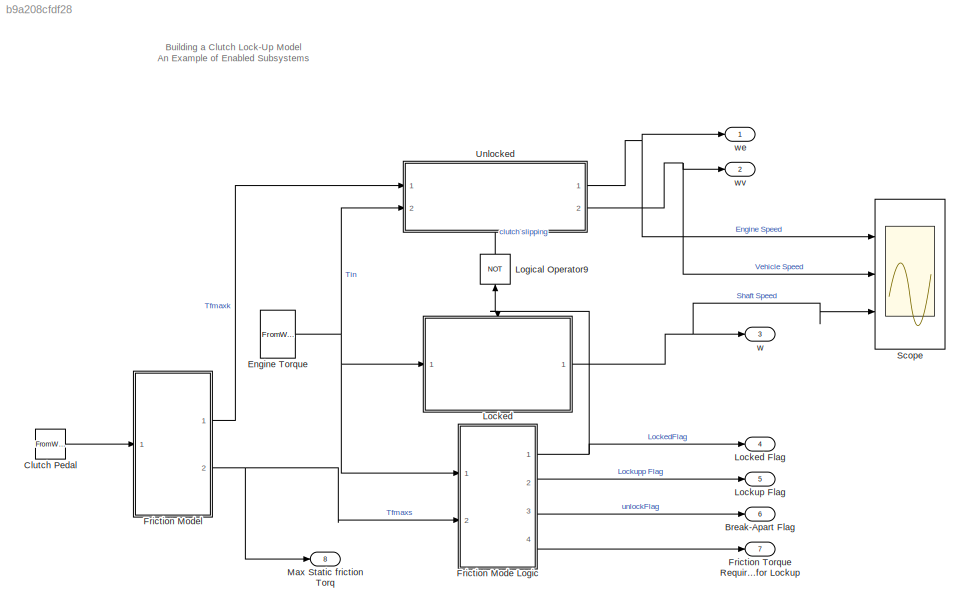
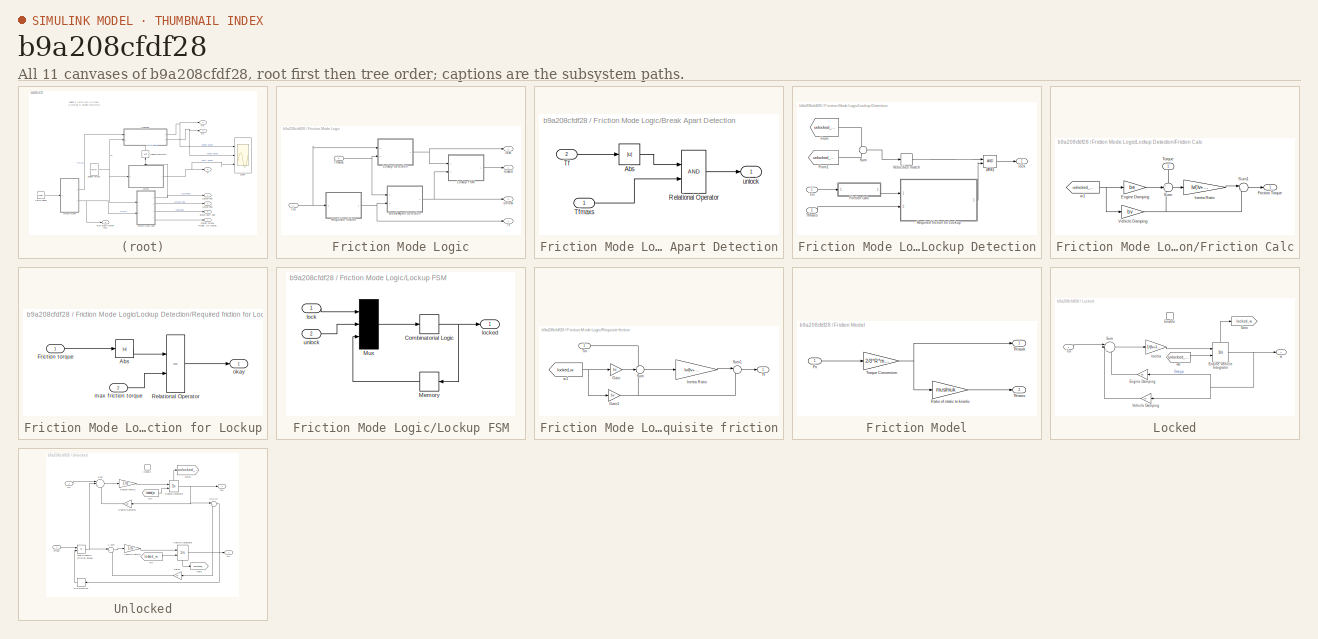
[diagram: thumbnail index - all 11 canvases of the model, root first then tree order]
MODEL slx_b9a208cfdf28
KIND model
CONFIG AbsTol = auto
CONFIG EnableMultiTasking = off
CONFIG FixedStep = auto
CONFIG MaxStep = auto
CONFIG MinStep = auto
CONFIG RelTol = 1e-3
CONFIG SampleTimeConstraint = Unconstrained
CONFIG Solver = VariableStepAuto
CONFIG SolverName = VariableStepAuto
CONFIG StartTime = 0.0
CONFIG StopTime = 10.0
WORKSPACE source: mxarray member
WORKSPACE Fn = [0 1 2 3 4 5 6 7 8 9 10 0 ... (22 elements, 11x2)]
WORKSPACE Ie = 1
WORKSPACE Iv = 1
WORKSPACE R = 1
WORKSPACE Tin = [1 2 3 4 5 6 7 8 9 10 2 2 ... (20 elements, 10x2)]
WORKSPACE f1 = [1 6 11 16 21 26 31 36 41 46 51]
WORKSPACE muk = 1
WORKSPACE mus = 1.5
BLOCK [Outport] Break-Apart Flag
  Port = 6
BLOCK [FromWorkspace] Clutch Pedal
  VariableName = Fn
  ZeroCross = off
BLOCK [FromWorkspace] Engine Torque
  VariableName = Tin
  ZeroCross = off
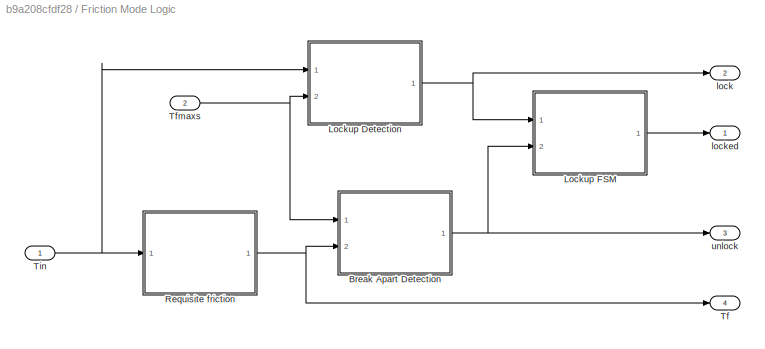
BLOCK [SubSystem] Friction Mode Logic
  Ports = [2, 4]
  RequestExecContextInheritance = off
BLOCK [SubSystem] Friction Mode Logic/Break Apart Detection
  Ports = [2, 1]
  RequestExecContextInheritance = off
BLOCK [Abs] Friction Mode Logic/Break Apart Detection/Abs
  SaturateOnIntegerOverflow = off
BLOCK [RelationalOperator] Friction Mode Logic/Break Apart Detection/Relational Operator
  InputSameDT = off
  OutDataTypeStr = boolean
  Ports = [2, 1]
  RndMeth = Simplest
BLOCK [Inport] Friction Mode Logic/Break Apart Detection/Tf
  Port = 2
BLOCK [Inport] Friction Mode Logic/Break Apart Detection/Tfmaxs
BLOCK [Outport] Friction Mode Logic/Break Apart Detection/unlock
BLOCK [SubSystem] Friction Mode Logic/Lockup Detection
  Ports = [2, 1]
  RequestExecContextInheritance = off
BLOCK [Logic] Friction Mode Logic/Lockup Detection/(AND)
  AllPortsSameDT = off
  IconShape = distinctive
  OutDataTypeStr = boolean
  Ports = [2, 1]
BLOCK [SubSystem] Friction Mode Logic/Lockup Detection/Friction Calc
  Ports = [1, 1]
  RequestExecContextInheritance = off
BLOCK [Gain] Friction Mode Logic/Lockup Detection/Friction Calc/Engine Damping
  Gain = be
  NameLocation = top
  OutDataTypeStr = Inherit: Same as input
  ParamDataTypeStr = Inherit: Same as input
  SaturateOnIntegerOverflow = on
BLOCK [Outport] Friction Mode Logic/Lockup Detection/Friction Calc/Friction Torque
  InitialOutput = 0
  VectorParamsAs1DForOutWhenUnconnected = off
BLOCK [Gain] Friction Mode Logic/Lockup Detection/Friction Calc/Inertia Ratio
  Gain = Iv/(Iv+Ie)
  OutDataTypeStr = Inherit: Same as input
  ParamDataTypeStr = Inherit: Same as input
  SaturateOnIntegerOverflow = on
BLOCK [Sum] Friction Mode Logic/Lockup Detection/Friction Calc/Sum
  InputSameDT = on
  Inputs = +--
  OutDataTypeStr = Inherit: Same as first input
  Ports = [3, 1]
  SaturateOnIntegerOverflow = on
BLOCK [Sum] Friction Mode Logic/Lockup Detection/Friction Calc/Sum1
  InputSameDT = on
  Inputs = |++
  OutDataTypeStr = Inherit: Same as first input
  Ports = [2, 1]
  SaturateOnIntegerOverflow = on
BLOCK [Inport] Friction Mode Logic/Lockup Detection/Friction Calc/Torque
  NameLocation = left
BLOCK [Gain] Friction Mode Logic/Lockup Detection/Friction Calc/Vehicle Damping
  Gain = bv
  OutDataTypeStr = Inherit: Same as input
  ParamDataTypeStr = Inherit: Same as input
  SaturateOnIntegerOverflow = on
BLOCK [From] Friction Mode Logic/Lockup Detection/Friction Calc/w1
  GotoTag = unlocked_we
  TagVisibility = global
BLOCK [From] Friction Mode Logic/Lockup Detection/From
  GotoTag = unlocked_we
  TagVisibility = global
BLOCK [From] Friction Mode Logic/Lockup Detection/From1
  GotoTag = unlocked_wv
  TagVisibility = global
BLOCK [SubSystem] Friction Mode Logic/Lockup Detection/Required friction for Lockup
  Ports = [2, 1]
  RequestExecContextInheritance = off
BLOCK [Abs] Friction Mode Logic/Lockup Detection/Required friction for Lockup/Abs
  SaturateOnIntegerOverflow = off
BLOCK [Inport] Friction Mode Logic/Lockup Detection/Required friction for Lockup/Friction torque
BLOCK [RelationalOperator] Friction Mode Logic/Lockup Detection/Required friction for Lockup/Relational Operator
  InputSameDT = off
  Operator = <=
  OutDataTypeStr = boolean
  Ports = [2, 1]
  RndMeth = Simplest
BLOCK [Inport] Friction Mode Logic/Lockup Detection/Required friction for Lockup/max friction torque
  Port = 2
BLOCK [Outport] Friction Mode Logic/Lockup Detection/Required friction for Lockup/okay
BLOCK [Sum] Friction Mode Logic/Lockup Detection/Sum
  Inputs = +-
  Ports = [2, 1]
BLOCK [Inport] Friction Mode Logic/Lockup Detection/Tfmaxs
  Port = 2
BLOCK [Inport] Friction Mode Logic/Lockup Detection/Tin
BLOCK [HitCross] Friction Mode Logic/Lockup Detection/Velocities match
  Ports = [1, 1]
BLOCK [Outport] Friction Mode Logic/Lockup Detection/lock
BLOCK [SubSystem] Friction Mode Logic/Lockup FSM
  Ports = [2, 1]
  RequestExecContextInheritance = off
BLOCK [CombinatorialLogic] Friction Mode Logic/Lockup FSM/Combinatorial Logic
  TruthTable = [0;1;0;0;1;1;1;0]
BLOCK [Memory] Friction Mode Logic/Lockup FSM/Memory
BLOCK [Mux] Friction Mode Logic/Lockup FSM/Mux
  Inputs = 3
  Ports = [3, 1]
BLOCK [Inport] Friction Mode Logic/Lockup FSM/lock
BLOCK [Outport] Friction Mode Logic/Lockup FSM/locked
BLOCK [Inport] Friction Mode Logic/Lockup FSM/unlock
  Port = 2
BLOCK [SubSystem] Friction Mode Logic/Requisite friction
  Ports = [1, 1]
  RequestExecContextInheritance = off
BLOCK [Gain] Friction Mode Logic/Requisite friction/Gain
  Gain = be
BLOCK [Gain] Friction Mode Logic/Requisite friction/Gain1
  Gain = bv
BLOCK [Gain] Friction Mode Logic/Requisite friction/Inertia Ratio
  Gain = Iv/(Iv+Ie)
BLOCK [Sum] Friction Mode Logic/Requisite friction/Sum
  Inputs = +--
  Ports = [3, 1]
BLOCK [Sum] Friction Mode Logic/Requisite friction/Sum1
  Inputs = |++
  Ports = [2, 1]
BLOCK [Outport] Friction Mode Logic/Requisite friction/Tf
BLOCK [Inport] Friction Mode Logic/Requisite friction/Tin
BLOCK [From] Friction Mode Logic/Requisite friction/w1
  GotoTag = locked_w
  TagVisibility = global
BLOCK [Outport] Friction Mode Logic/Tf
  Port = 4
BLOCK [Inport] Friction Mode Logic/Tfmaxs
  Port = 2
BLOCK [Inport] Friction Mode Logic/Tin
BLOCK [Outport] Friction Mode Logic/lock
  Port = 2
BLOCK [Outport] Friction Mode Logic/locked
BLOCK [Outport] Friction Mode Logic/unlock
  Port = 3
BLOCK [SubSystem] Friction Model
  Ports = [1, 2]
  RequestExecContextInheritance = off
BLOCK [Inport] Friction Model/Fn
BLOCK [Gain] Friction Model/Ratio of static to kinetic
  Gain = mus/muk
  OutDataTypeStr = Inherit: Same as input
  ParamDataTypeStr = Inherit: Same as input
  SaturateOnIntegerOverflow = on
BLOCK [Outport] Friction Model/Tfmaxk
BLOCK [Outport] Friction Model/Tfmaxs
  Port = 2
BLOCK [Gain] Friction Model/Torque Conversion
  Gain = 2/3*R*muk
  OutDataTypeStr = Inherit: Same as input
  ParamDataTypeStr = Inherit: Same as input
  SaturateOnIntegerOverflow = on
BLOCK [Outport] Friction Torque Required for Lockup
  Port = 7
BLOCK [SubSystem] Locked
  Ports = [1, 1, 1]
  RequestExecContextInheritance = off
BLOCK [Outport] Locked Flag
  Port = 4
BLOCK [EnablePort] Locked/Enable
  Ports = []
BLOCK [Gain] Locked/Engine Damping
  Gain = be
BLOCK [Integrator] Locked/Engine Vehicle Integrator
  InitialConditionSource = external
  Ports = [2, 1, 0, 0, 1]
  ShowStatePort = on
BLOCK [Goto] Locked/Goto
  GotoTag = locked_w
  TagVisibility = global
BLOCK [Gain] Locked/Inertia
  Gain = 1/(Iv+Ie)
  NameLocation = top
BLOCK [Sum] Locked/Sum
  Inputs = ||+--
  Ports = [3, 1]
BLOCK [Inport] Locked/Tin
BLOCK [Gain] Locked/Vehicle Damping
  Gain = bv
BLOCK [Outport] Locked/w
BLOCK [From] Locked/w0
  GotoTag = unlocked_we
  TagVisibility = global
BLOCK [Outport] Lockup Flag
  Port = 5
BLOCK [Logic] Logical Operator9
  IconShape = distinctive
  Inputs = 1
  NameLocation = left
  Operator = NOT
  OutDataTypeStr = boolean
  Ports = [1, 1]
BLOCK [Outport] Max Static friction Torq
  Port = 8
BLOCK [Scope] Scope
  Floating = off
  NumInputPorts = 3
  Ports = [3]
  ScopeSpecificationString = Simulink.scopes.TimeScopeBlockCfg('CurrentConfiguration', extmgr.ConfigurationSet(extmgr.Configuration('Core','General UI',true),extmgr.Configuration('Core','Source UI',true),extmgr.Configuration('Sources','WiredSimulink',true),extmgr.Configuration('Visuals','Time Domain',true,'SerializedDisplays',{struct('MinYLimReal','-0.14585','MaxYLimReal','1.31266','YLabelReal','','MinYLimMag','0.00000','MaxY...<+1391ch>
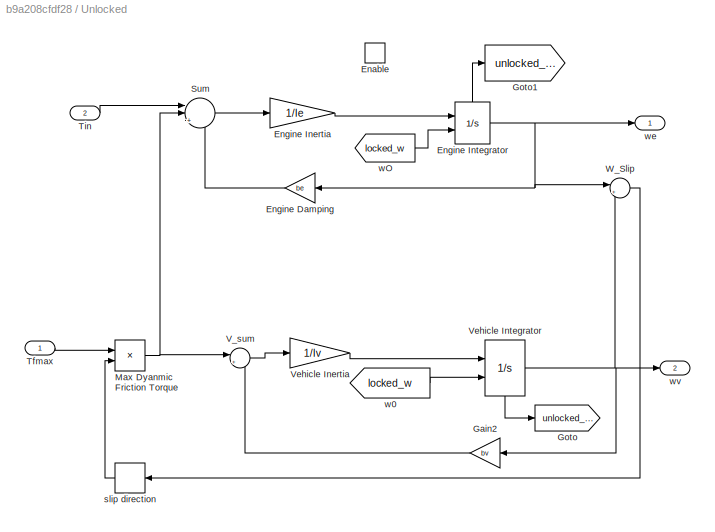
BLOCK [SubSystem] Unlocked
  InitFcn = be = 1;\nbv = 1;
  NameLocation = top
  Ports = [2, 2, 1]
  RequestExecContextInheritance = off
BLOCK [EnablePort] Unlocked/Enable
  Ports = []
BLOCK [Gain] Unlocked/Engine Damping
  Gain = be
BLOCK [Gain] Unlocked/Engine Inertia
  Gain = 1/Ie
BLOCK [Integrator] Unlocked/Engine Integrator
  InitialConditionSource = external
  Ports = [2, 1, 0, 0, 1]
  ShowStatePort = on
BLOCK [Gain] Unlocked/Gain2
  Gain = bv
BLOCK [Goto] Unlocked/Goto
  GotoTag = unlocked_wv
  TagVisibility = global
BLOCK [Goto] Unlocked/Goto1
  GotoTag = unlocked_we
  TagVisibility = global
BLOCK [Product] Unlocked/Max Dyanmic Friction Torque
  Ports = [2, 1]
BLOCK [Sum] Unlocked/Sum
  Inputs = ||+--
  Ports = [3, 1]
BLOCK [Inport] Unlocked/Tfmax
BLOCK [Inport] Unlocked/Tin
  Port = 2
BLOCK [Sum] Unlocked/V_sum
  Inputs = |+-
  Ports = [2, 1]
BLOCK [Gain] Unlocked/Vehicle Inertia
  Gain = 1/Iv
BLOCK [Integrator] Unlocked/Vehicle Integrator
  InitialConditionSource = external
  NameLocation = top
  Ports = [2, 1, 0, 0, 1]
  ShowStatePort = on
BLOCK [Sum] Unlocked/W_Slip
  Inputs = |+-
  NameLocation = top
  Ports = [2, 1]
BLOCK [Signum] Unlocked/slip direction
BLOCK [From] Unlocked/w0
  GotoTag = locked_w
  TagVisibility = global
BLOCK [From] Unlocked/wO
  GotoTag = locked_w
  TagVisibility = global
BLOCK [Outport] Unlocked/we
BLOCK [Outport] Unlocked/wv
  Port = 2
BLOCK [Outport] w
  Port = 3
BLOCK [Outport] we
BLOCK [Outport] wv
  Port = 2
ANNOTATION (root): Building a Clutch Lock-Up Model An Example of Enabled Subsystems
LINE Clutch Pedal:1 -> Friction Model:1
NET Engine Torque:1 -> Friction Mode Logic:1, Locked:1, Unlocked:2
LINE Friction Mode Logic/Break Apart Detection/Abs:1 -> Friction Mode Logic/Break Apart Detection/Relational Operator:1
LINE Friction Mode Logic/Break Apart Detection/Relational Operator:1 -> Friction Mode Logic/Break Apart Detection/unlock:1
LINE Friction Mode Logic/Break Apart Detection/Tf:1 -> Friction Mode Logic/Break Apart Detection/Abs:1
LINE Friction Mode Logic/Break Apart Detection/Tfmaxs:1 -> Friction Mode Logic/Break Apart Detection/Relational Operator:2
NET Friction Mode Logic/Break Apart Detection:1 -> Friction Mode Logic/Lockup FSM:2, Friction Mode Logic/unlock:1
LINE Friction Mode Logic/Lockup Detection/(AND):1 -> Friction Mode Logic/Lockup Detection/lock:1
LINE Friction Mode Logic/Lockup Detection/Friction Calc/Engine Damping:1 -> Friction Mode Logic/Lockup Detection/Friction Calc/Sum:2
LINE Friction Mode Logic/Lockup Detection/Friction Calc/Inertia Ratio:1 -> Friction Mode Logic/Lockup Detection/Friction Calc/Sum1:1
LINE Friction Mode Logic/Lockup Detection/Friction Calc/Sum1:1 -> Friction Mode Logic/Lockup Detection/Friction Calc/Friction Torque:1
LINE Friction Mode Logic/Lockup Detection/Friction Calc/Sum:1 -> Friction Mode Logic/Lockup Detection/Friction Calc/Inertia Ratio:1
LINE Friction Mode Logic/Lockup Detection/Friction Calc/Torque:1 -> Friction Mode Logic/Lockup Detection/Friction Calc/Sum:1
NET Friction Mode Logic/Lockup Detection/Friction Calc/Vehicle Damping:1 -> Friction Mode Logic/Lockup Detection/Friction Calc/Sum1:2, Friction Mode Logic/Lockup Detection/Friction Calc/Sum:3
NET Friction Mode Logic/Lockup Detection/Friction Calc/w1:1 -> Friction Mode Logic/Lockup Detection/Friction Calc/Engine Damping:1, Friction Mode Logic/Lockup Detection/Friction Calc/Vehicle Damping:1
LINE Friction Mode Logic/Lockup Detection/Friction Calc:1 -> Friction Mode Logic/Lockup Detection/Required friction for Lockup:1
LINE Friction Mode Logic/Lockup Detection/From1:1 -> Friction Mode Logic/Lockup Detection/Sum:2
LINE Friction Mode Logic/Lockup Detection/From:1 -> Friction Mode Logic/Lockup Detection/Sum:1
LINE Friction Mode Logic/Lockup Detection/Required friction for Lockup/Abs:1 -> Friction Mode Logic/Lockup Detection/Required friction for Lockup/Relational Operator:1
LINE Friction Mode Logic/Lockup Detection/Required friction for Lockup/Friction torque:1 -> Friction Mode Logic/Lockup Detection/Required friction for Lockup/Abs:1
LINE Friction Mode Logic/Lockup Detection/Required friction for Lockup/Relational Operator:1 -> Friction Mode Logic/Lockup Detection/Required friction for Lockup/okay:1
LINE Friction Mode Logic/Lockup Detection/Required friction for Lockup/max friction torque:1 -> Friction Mode Logic/Lockup Detection/Required friction for Lockup/Relational Operator:2
LINE Friction Mode Logic/Lockup Detection/Required friction for Lockup:1 -> Friction Mode Logic/Lockup Detection/(AND):2
LINE Friction Mode Logic/Lockup Detection/Sum:1 -> Friction Mode Logic/Lockup Detection/Velocities match:1
LINE Friction Mode Logic/Lockup Detection/Tfmaxs:1 -> Friction Mode Logic/Lockup Detection/Required friction for Lockup:2
LINE Friction Mode Logic/Lockup Detection/Tin:1 -> Friction Mode Logic/Lockup Detection/Friction Calc:1
LINE Friction Mode Logic/Lockup Detection/Velocities match:1 -> Friction Mode Logic/Lockup Detection/(AND):1
NET Friction Mode Logic/Lockup Detection:1 -> Friction Mode Logic/Lockup FSM:1, Friction Mode Logic/lock:1
NET Friction Mode Logic/Lockup FSM/Combinatorial Logic:1 -> Friction Mode Logic/Lockup FSM/Memory:1, Friction Mode Logic/Lockup FSM/locked:1
LINE Friction Mode Logic/Lockup FSM/Memory:1 -> Friction Mode Logic/Lockup FSM/Mux:3
LINE Friction Mode Logic/Lockup FSM/Mux:1 -> Friction Mode Logic/Lockup FSM/Combinatorial Logic:1
LINE Friction Mode Logic/Lockup FSM/lock:1 -> Friction Mode Logic/Lockup FSM/Mux:1
LINE Friction Mode Logic/Lockup FSM/unlock:1 -> Friction Mode Logic/Lockup FSM/Mux:2
LINE Friction Mode Logic/Lockup FSM:1 -> Friction Mode Logic/locked:1
NET Friction Mode Logic/Requisite friction/Gain1:1 -> Friction Mode Logic/Requisite friction/Sum1:2, Friction Mode Logic/Requisite friction/Sum:3
LINE Friction Mode Logic/Requisite friction/Gain:1 -> Friction Mode Logic/Requisite friction/Sum:2
LINE Friction Mode Logic/Requisite friction/Inertia Ratio:1 -> Friction Mode Logic/Requisite friction/Sum1:1
LINE Friction Mode Logic/Requisite friction/Sum1:1 -> Friction Mode Logic/Requisite friction/Tf:1
LINE Friction Mode Logic/Requisite friction/Sum:1 -> Friction Mode Logic/Requisite friction/Inertia Ratio:1
LINE Friction Mode Logic/Requisite friction/Tin:1 -> Friction Mode Logic/Requisite friction/Sum:1
NET Friction Mode Logic/Requisite friction/w1:1 -> Friction Mode Logic/Requisite friction/Gain1:1, Friction Mode Logic/Requisite friction/Gain:1
NET Friction Mode Logic/Requisite friction:1 -> Friction Mode Logic/Break Apart Detection:2, Friction Mode Logic/Tf:1
NET Friction Mode Logic/Tfmaxs:1 -> Friction Mode Logic/Break Apart Detection:1, Friction Mode Logic/Lockup Detection:2
NET Friction Mode Logic/Tin:1 -> Friction Mode Logic/Lockup Detection:1, Friction Mode Logic/Requisite friction:1
NET Friction Mode Logic:1 -> Locked Flag:1, Locked:enable, Logical Operator9:1
LINE Friction Mode Logic:2 -> Lockup Flag:1
LINE Friction Mode Logic:3 -> Break-Apart Flag:1
LINE Friction Mode Logic:4 -> Friction Torque Required for Lockup:1
LINE Friction Model/Fn:1 -> Friction Model/Torque Conversion:1
LINE Friction Model/Ratio of static to kinetic:1 -> Friction Model/Tfmaxs:1
NET Friction Model/Torque Conversion:1 -> Friction Model/Ratio of static to kinetic:1, Friction Model/Tfmaxk:1
LINE Friction Model:1 -> Unlocked:1
NET Friction Model:2 -> Friction Mode Logic:2, Max Static friction Torq:1
LINE Locked/Engine Damping:1 -> Locked/Sum:3
NET Locked/Engine Vehicle Integrator:1 -> Locked/Engine Damping:1, Locked/Vehicle Damping:1, Locked/w:1
LINE Locked/Engine Vehicle Integrator:state -> Locked/Goto:1
LINE Locked/Inertia:1 -> Locked/Engine Vehicle Integrator:1
LINE Locked/Sum:1 -> Locked/Inertia:1
LINE Locked/Tin:1 -> Locked/Sum:1
LINE Locked/Vehicle Damping:1 -> Locked/Sum:2
LINE Locked/w0:1 -> Locked/Engine Vehicle Integrator:2
NET Locked:1 -> Scope:3, w:1
LINE Logical Operator9:1 -> Unlocked:enable
LINE Unlocked/Engine Damping:1 -> Unlocked/Sum:3
LINE Unlocked/Engine Inertia:1 -> Unlocked/Engine Integrator:1
NET Unlocked/Engine Integrator:1 -> Unlocked/Engine Damping:1, Unlocked/W_Slip:1, Unlocked/we:1
LINE Unlocked/Engine Integrator:state -> Unlocked/Goto1:1
LINE Unlocked/Gain2:1 -> Unlocked/V_sum:2
NET Unlocked/Max Dyanmic Friction Torque:1 -> Unlocked/Sum:2, Unlocked/V_sum:1
LINE Unlocked/Sum:1 -> Unlocked/Engine Inertia:1
LINE Unlocked/Tfmax:1 -> Unlocked/Max Dyanmic Friction Torque:1
LINE Unlocked/Tin:1 -> Unlocked/Sum:1
LINE Unlocked/V_sum:1 -> Unlocked/Vehicle Inertia:1
LINE Unlocked/Vehicle Inertia:1 -> Unlocked/Vehicle Integrator:1
NET Unlocked/Vehicle Integrator:1 -> Unlocked/Gain2:1, Unlocked/W_Slip:2, Unlocked/wv:1
LINE Unlocked/Vehicle Integrator:state -> Unlocked/Goto:1
LINE Unlocked/W_Slip:1 -> Unlocked/slip direction:1
LINE Unlocked/slip direction:1 -> Unlocked/Max Dyanmic Friction Torque:2
LINE Unlocked/w0:1 -> Unlocked/Vehicle Integrator:2
LINE Unlocked/wO:1 -> Unlocked/Engine Integrator:2
NET Unlocked:1 -> Scope:1, we:1
NET Unlocked:2 -> Scope:2, wv:1
note: NET lines group one-source signal fan-out (src -> all destinations, sorted); 1:1 wires keep LINE
